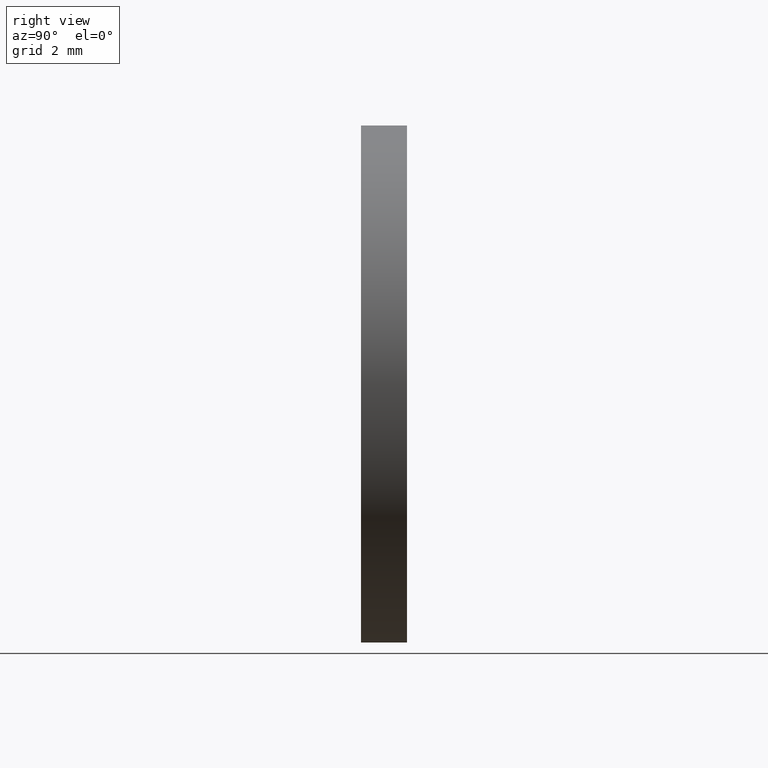
[diagram: clean part render]
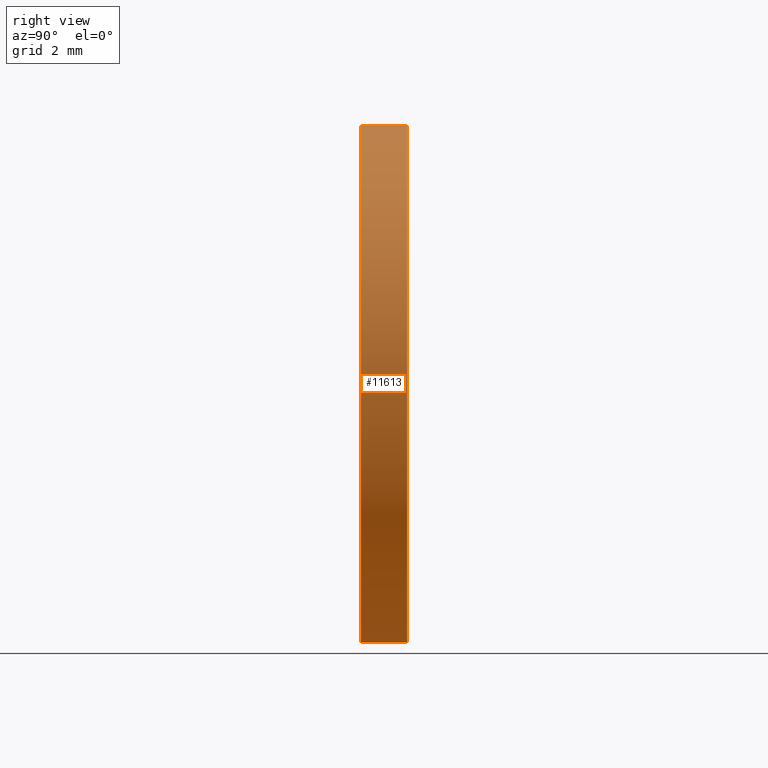
[diagram: same view with one face highlighted and labeled with its STEP entity id]
A machine part, right view. The second image highlights one B-rep face of the part: STEP entity #11613.
In plain terms, the highlighted cylindrical surface (partial cylindrical patch) has radius 9 mm, axis along (-0, -1, -0).
Its self-contained STEP definition (entity closure, byte-faithful):
#105 = EDGE_CURVE ( 'NONE', #10148, #1503, #5996, .T. ) ;
#221 = CIRCLE ( 'NONE', #8836, 9.000000000000000000 ) ;
#477 = VECTOR ( 'NONE', #15005, 1000.000000000000000 ) ;
#535 = DIRECTION ( 'NONE',  ( 0.000000000000000000, 0.000000000000000000, 1.000000000000000000 ) ) ;
#772 = FACE_OUTER_BOUND ( 'NONE', #2781, .T. ) ;
#1503 = VERTEX_POINT ( 'NONE', #7740 ) ;
#1748 = CARTESIAN_POINT ( 'NONE',  ( 1.102182119232617714E-15, 0.8000000000000000444, 9.000000000000000000 ) ) ;
#1898 = AXIS2_PLACEMENT_3D ( 'NONE', #8294, #5785, #535 ) ;
#2050 = EDGE_CURVE ( 'NONE', #11362, #7289, #9572, .T. ) ;
#2734 = CARTESIAN_POINT ( 'NONE',  ( 0.000000000000000000, 0.8000000000000000444, -9.000000000000000000 ) ) ;
#2781 = EDGE_LOOP ( 'NONE', ( #7835, #10002, #11793, #10255 ) ) ;
#3407 = CARTESIAN_POINT ( 'NONE',  ( 1.102182119232617714E-15, 0.8000000000000000444, 9.000000000000000000 ) ) ;
#3619 = CARTESIAN_POINT ( 'NONE',  ( 0.000000000000000000, 0.8000000000000000444, 0.000000000000000000 ) ) ;
#4099 = DIRECTION ( 'NONE',  ( -0.000000000000000000, -1.000000000000000000, -0.000000000000000000 ) ) ;
#4227 = CYLINDRICAL_SURFACE ( 'NONE', #12949, 9.000000000000000000 ) ;
#4967 = DIRECTION ( 'NONE',  ( 0.000000000000000000, 0.000000000000000000, 1.000000000000000000 ) ) ;
#5785 = DIRECTION ( 'NONE',  ( 0.000000000000000000, 1.000000000000000000, 0.000000000000000000 ) ) ;
#5996 = LINE ( 'NONE', #3407, #477 ) ;
#6399 = CARTESIAN_POINT ( 'NONE',  ( 0.000000000000000000, -0.8000000000000000444, -9.000000000000000000 ) ) ;
#6684 = EDGE_CURVE ( 'NONE', #10148, #11362, #221, .T. ) ;
#7036 = DIRECTION ( 'NONE',  ( -0.000000000000000000, -1.000000000000000000, -0.000000000000000000 ) ) ;
#7209 = DIRECTION ( 'NONE',  ( 0.000000000000000000, 0.000000000000000000, -1.000000000000000000 ) ) ;
#7289 = VERTEX_POINT ( 'NONE', #6399 ) ;
#7542 = DIRECTION ( 'NONE',  ( 0.000000000000000000, 1.000000000000000000, 0.000000000000000000 ) ) ;
#7740 = CARTESIAN_POINT ( 'NONE',  ( 1.102182119232617714E-15, -0.8000000000000000444, 9.000000000000000000 ) ) ;
#7835 = ORIENTED_EDGE ( 'NONE', *, *, #6684, .F. ) ;
#8189 = CIRCLE ( 'NONE', #1898, 9.000000000000000000 ) ;
#8294 = CARTESIAN_POINT ( 'NONE',  ( 0.000000000000000000, -0.8000000000000000444, 0.000000000000000000 ) ) ;
#8723 = CARTESIAN_POINT ( 'NONE',  ( 0.000000000000000000, 0.8000000000000000444, -9.000000000000000000 ) ) ;
#8836 = AXIS2_PLACEMENT_3D ( 'NONE', #3619, #7542, #4967 ) ;
#9572 = LINE ( 'NONE', #2734, #16421 ) ;
#10002 = ORIENTED_EDGE ( 'NONE', *, *, #105, .T. ) ;
#10148 = VERTEX_POINT ( 'NONE', #1748 ) ;
#10255 = ORIENTED_EDGE ( 'NONE', *, *, #2050, .F. ) ;
#11362 = VERTEX_POINT ( 'NONE', #8723 ) ;
#11613 = ADVANCED_FACE ( 'NONE', ( #772 ), #4227, .T. ) ;
#11793 = ORIENTED_EDGE ( 'NONE', *, *, #16338, .T. ) ;
#12949 = AXIS2_PLACEMENT_3D ( 'NONE', #15917, #7036, #7209 ) ;
#15005 = DIRECTION ( 'NONE',  ( -0.000000000000000000, -1.000000000000000000, -0.000000000000000000 ) ) ;
#15917 = CARTESIAN_POINT ( 'NONE',  ( 0.000000000000000000, 0.8000000000000000444, 0.000000000000000000 ) ) ;
#16338 = EDGE_CURVE ( 'NONE', #1503, #7289, #8189, .T. ) ;
#16421 = VECTOR ( 'NONE', #4099, 1000.000000000000000 ) ;